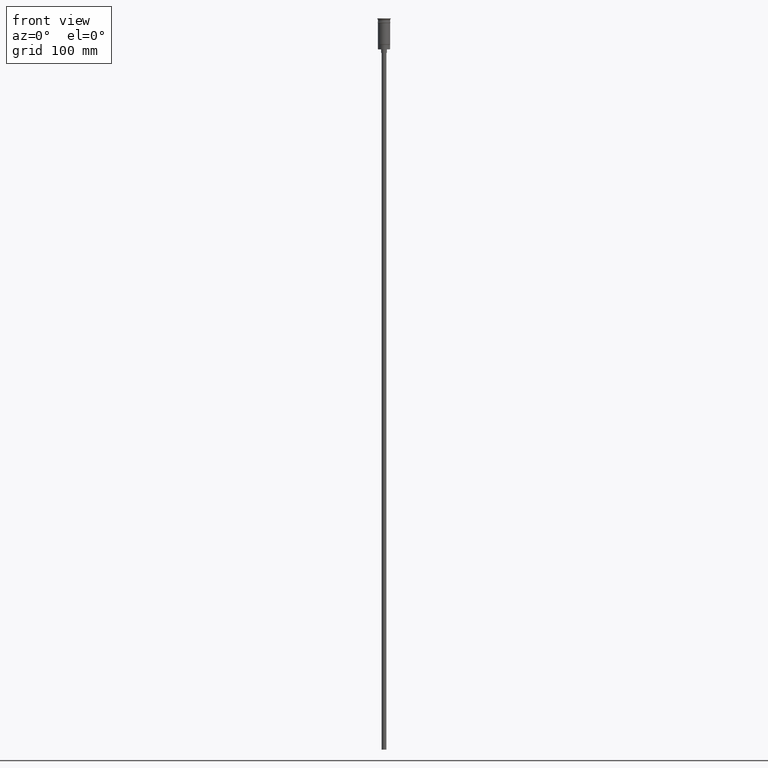
[diagram: clean part render]
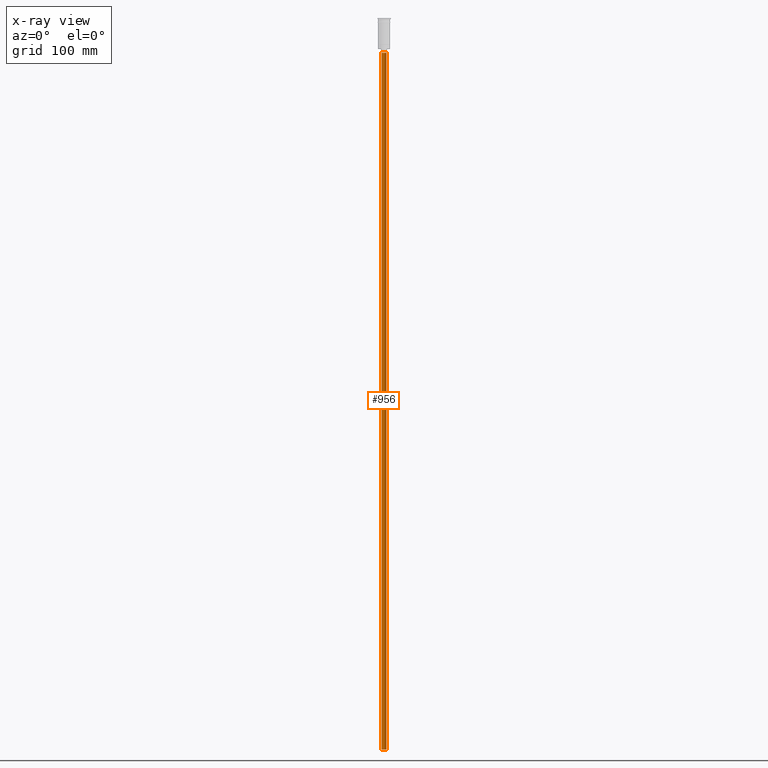
[diagram: x-ray — body ghosted, one internal face saturated and labeled with its STEP entity id]
A machine part, front view, then the same camera in x-ray: the body is ghosted and one INTERNAL B-rep face — a face not visible from any outside direction — is saturated and labeled: STEP entity #956.
In plain terms, the highlighted cylindrical surface (edge-blend (fillet) strip) has radius 2 mm, axis along (-0, -0, 1).
Its self-contained STEP definition (entity closure, byte-faithful):
#227 = VERTEX_POINT ( 'NONE', #1456 ) ;
#253 = CARTESIAN_POINT ( 'NONE',  ( 0.000000000000000000, 0.000000000000000000, -626.5000000000000000 ) ) ;
#268 = DIRECTION ( 'NONE',  ( -0.000000000000000000, -0.000000000000000000, 1.000000000000000000 ) ) ;
#280 = LINE ( 'NONE', #1389, #1503 ) ;
#294 = VERTEX_POINT ( 'NONE', #406 ) ;
#313 = AXIS2_PLACEMENT_3D ( 'NONE', #1467, #845, #670 ) ;
#316 = ORIENTED_EDGE ( 'NONE', *, *, #1264, .T. ) ;
#364 = DIRECTION ( 'NONE',  ( 0.000000000000000000, 0.000000000000000000, -1.000000000000000000 ) ) ;
#370 = AXIS2_PLACEMENT_3D ( 'NONE', #253, #364, #1377 ) ;
#406 = CARTESIAN_POINT ( 'NONE',  ( 2.000000000000000000, 0.000000000000000000, -626.5000000000000000 ) ) ;
#454 = EDGE_CURVE ( 'NONE', #1325, #294, #1059, .T. ) ;
#477 = CIRCLE ( 'NONE', #313, 2.000000000000000000 ) ;
#515 = EDGE_CURVE ( 'NONE', #294, #866, #280, .T. ) ;
#523 = EDGE_CURVE ( 'NONE', #1325, #227, #653, .T. ) ;
#653 = LINE ( 'NONE', #1147, #1589 ) ;
#670 = DIRECTION ( 'NONE',  ( -1.000000000000000000, 0.000000000000000000, 0.000000000000000000 ) ) ;
#802 = CARTESIAN_POINT ( 'NONE',  ( 0.000000000000000000, 0.000000000000000000, -626.5000000000000000 ) ) ;
#812 = ORIENTED_EDGE ( 'NONE', *, *, #515, .F. ) ;
#845 = DIRECTION ( 'NONE',  ( 0.000000000000000000, 0.000000000000000000, -1.000000000000000000 ) ) ;
#866 = VERTEX_POINT ( 'NONE', #1573 ) ;
#956 = ADVANCED_FACE ( 'NONE', ( #1218 ), #1565, .T. ) ;
#1059 = CIRCLE ( 'NONE', #370, 2.000000000000000000 ) ;
#1147 = CARTESIAN_POINT ( 'NONE',  ( -2.000000000000000000, 2.449293598294706414E-16, -626.5000000000000000 ) ) ;
#1198 = CARTESIAN_POINT ( 'NONE',  ( -2.000000000000000000, 2.449293598294706414E-16, -626.5000000000000000 ) ) ;
#1202 = AXIS2_PLACEMENT_3D ( 'NONE', #802, #1442, #1590 ) ;
#1218 = FACE_OUTER_BOUND ( 'NONE', #1473, .T. ) ;
#1264 = EDGE_CURVE ( 'NONE', #227, #866, #477, .T. ) ;
#1325 = VERTEX_POINT ( 'NONE', #1198 ) ;
#1368 = ORIENTED_EDGE ( 'NONE', *, *, #454, .F. ) ;
#1377 = DIRECTION ( 'NONE',  ( -1.000000000000000000, 0.000000000000000000, 0.000000000000000000 ) ) ;
#1389 = CARTESIAN_POINT ( 'NONE',  ( 2.000000000000000000, 0.000000000000000000, -626.5000000000000000 ) ) ;
#1399 = DIRECTION ( 'NONE',  ( -0.000000000000000000, -0.000000000000000000, 1.000000000000000000 ) ) ;
#1442 = DIRECTION ( 'NONE',  ( -0.000000000000000000, -0.000000000000000000, 1.000000000000000000 ) ) ;
#1456 = CARTESIAN_POINT ( 'NONE',  ( -2.000000000000000000, 2.449293598294706414E-16, -29.50000000000000000 ) ) ;
#1467 = CARTESIAN_POINT ( 'NONE',  ( 0.000000000000000000, 0.000000000000000000, -29.50000000000000000 ) ) ;
#1473 = EDGE_LOOP ( 'NONE', ( #1368, #1574, #316, #812 ) ) ;
#1503 = VECTOR ( 'NONE', #1399, 1000.000000000000000 ) ;
#1565 = CYLINDRICAL_SURFACE ( 'NONE', #1202, 2.000000000000000000 ) ;
#1573 = CARTESIAN_POINT ( 'NONE',  ( 2.000000000000000000, 0.000000000000000000, -29.50000000000000000 ) ) ;
#1574 = ORIENTED_EDGE ( 'NONE', *, *, #523, .T. ) ;
#1589 = VECTOR ( 'NONE', #268, 1000.000000000000000 ) ;
#1590 = DIRECTION ( 'NONE',  ( 1.000000000000000000, 0.000000000000000000, 0.000000000000000000 ) ) ;